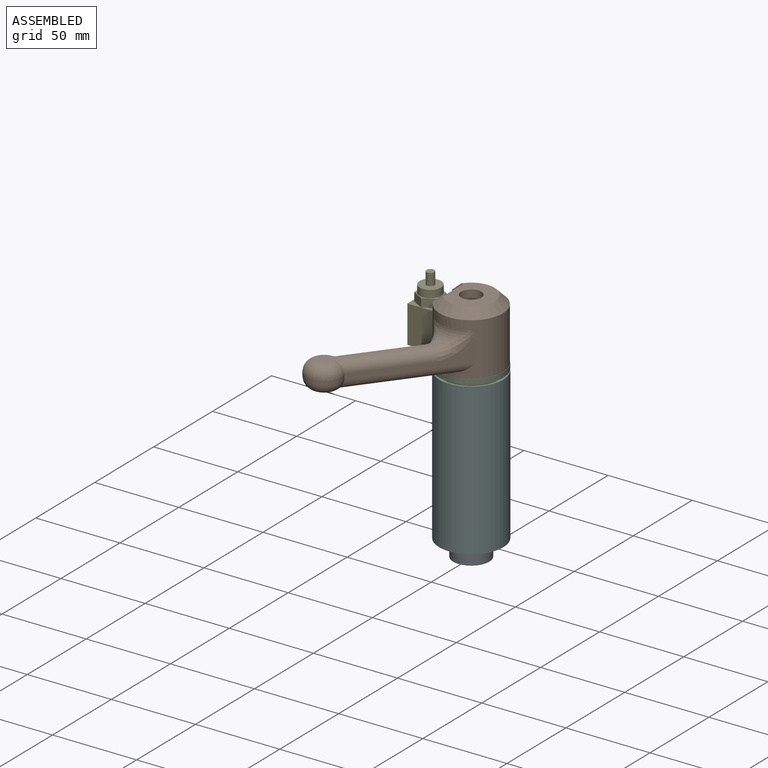
[diagram: assembled view]
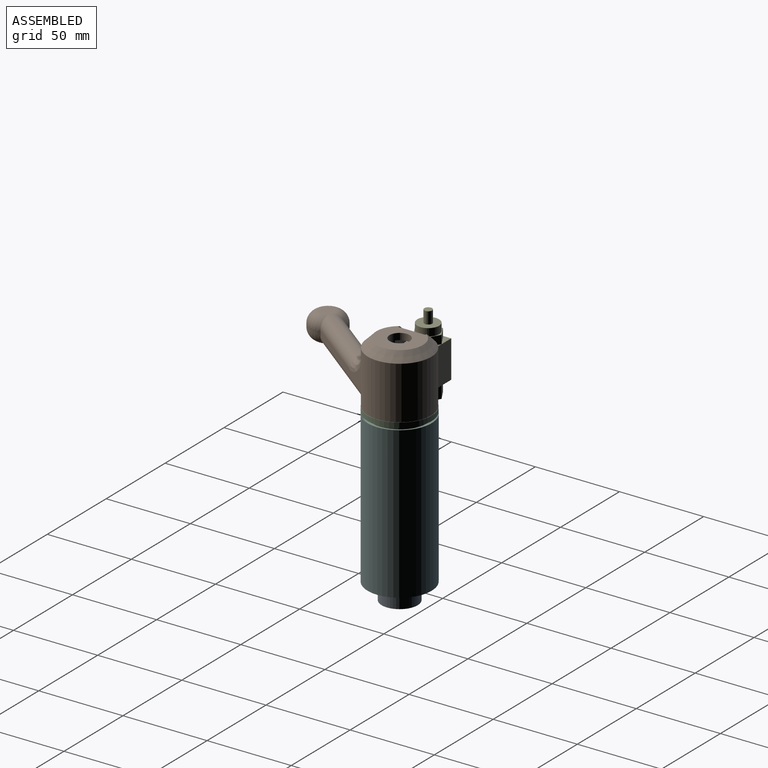
[diagram: assembled view, second angle]
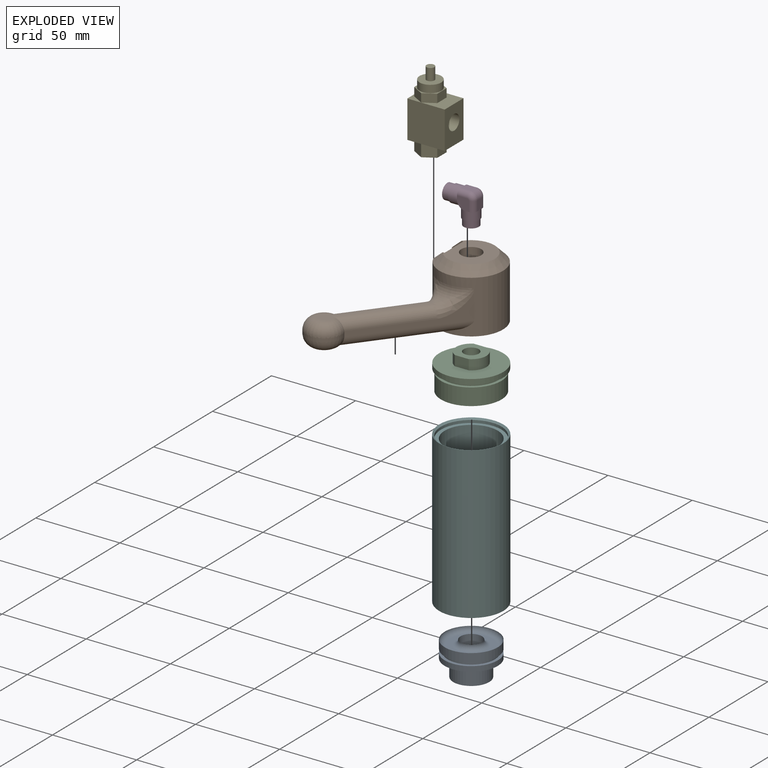
[diagram: exploded view]
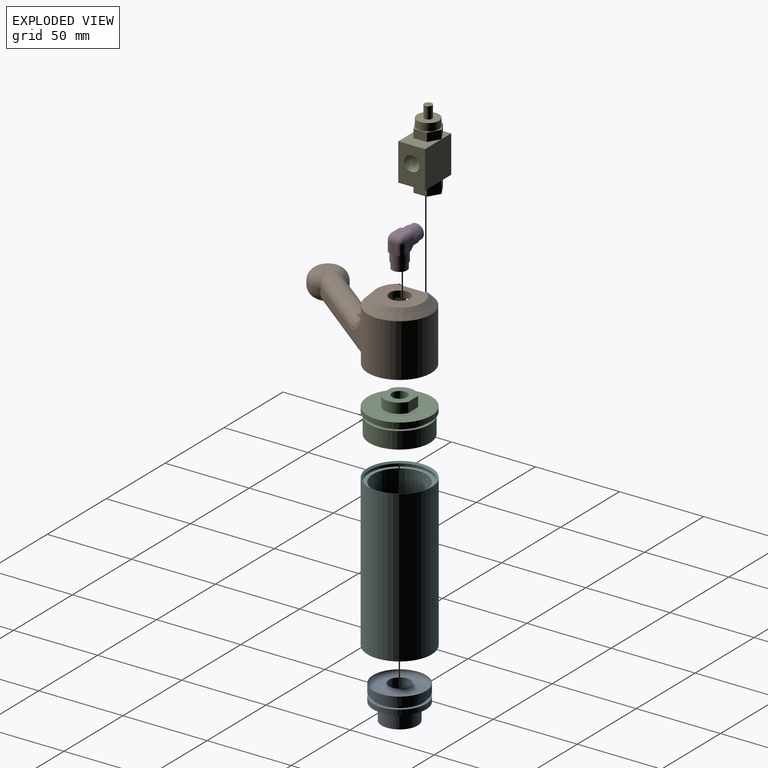
[diagram: exploded view, second angle]
ASSEMBLY  parts=6 mates=6
PART A: 16 faces, bbox 34.1x34.1x22.1 mm
  f0: torus R=12.75mm, axis (0,0,1), area 434.1mm2, adj f1,f15
  f1: plane 25.5x25.5mm, normal (0,0,1), area 233.1mm2, adj f0,f2
  f2: torus R=9.4mm, axis (0,0,1), area 221.8mm2, adj f1,f3
  f3: cylinder r=6.4mm len=12.8mm, axis (0,0,1), area 402.1mm2, adj f2,f4
  f4: plane 12.8x12.8mm, normal (0,0,1), area 50.1mm2, adj f3,f5
  f5: cylinder r=5mm len=10mm, axis (0,0,1), area 62.8mm2, adj f4,f6
  f6: plane 15.08x15.08mm, normal (0,0,-1), area 100.1mm2, adj f5,f7
  f7: cylinder r=7.54mm len=15.08mm, axis (0,0,1), area 379mm2, adj f6,f8
  f8: plane 21.4x21.4mm, normal (0,0,-1), area 181mm2, adj f7,f9
  f9: cylinder r=10.7mm len=21.4mm, axis (0,0,1), area 672.3mm2, adj f8,f10
  f10: plane 31.5x31.5mm, normal (0,0,-1), area 419.6mm2, adj f9,f11
  f11: cylinder r=15.75mm len=31.5mm, axis (0,0,1), area 296.9mm2, adj f10,f12
  f12: plane 31.5x31.5mm, normal (0,0,1), area 167.9mm2, adj f11,f13
  f13: cylinder r=13.95mm len=27.9mm, axis (0,0,1), area 175.3mm2, adj f12,f14
  f14: plane 31.5x31.5mm, normal (0,0,-1), area 167.9mm2, adj f13,f15
  f15: cylinder r=15.75mm len=31.5mm, axis (0,0,1), area 494.8mm2, adj f0,f14
PART B: 34 faces, bbox 99.5x70.7x37 mm
  f0: plane 32.6x7.01mm, normal (1,0,0), area 201.2mm2, adj f4,f9,f11,f12,f13,f15
  f1: plane 32.6x7.01mm, normal (-1,0,0), area 201.2mm2, adj f6,f9,f11,f12,f13,f15
  f2: plane 8.32x6.2mm, normal (1,0,0), area 51.6mm2, adj f4,f5,f11,f13
  f3: plane 8.32x6.2mm, normal (-1,0,0), area 51.6mm2, adj f5,f6,f11,f13
  f4: cylinder r=9.15mm len=6.2mm, axis (0,0,-1), area 29.1mm2, adj f0,f2,f11,f13
  f5: cylinder r=9.15mm len=16.3mm, axis (0,0,-1), area 124.7mm2, adj f2,f3,f11,f13
  f6: cylinder r=9.15mm len=6.2mm, axis (0,0,-1), area 29.1mm2, adj f1,f3,f11,f13
  f7: cylinder r=18.85mm len=37.7mm, axis (0,0,-1), area 2621mm2, adj f8,f10,f11,f16,f17,f21,f22,f23
  f8: plane 36.98x7.33mm, normal (1,0,0), area 235.7mm2, adj f7,f9,f11,f14,f16
  f9: plane 36.5x15.97mm, normal (0,-1,0), area 253mm2, adj f0,f1,f8,f10,f11,f14,f15
  f10: plane 36.98x7.33mm, normal (-1,0,0), area 235.7mm2, adj f7,f9,f11,f14,f16
  f11: plane 37.7x35.92mm, normal (0,0,-1), area 720.2mm2, adj f0,f1,f2,f3,f4,f5,f6,f7
  f12: cylinder r=6mm len=30.3mm, axis (0,0,-1), area 824.2mm2, adj f0,f1,f13,f14,f15
  f13: plane 16.77x16.3mm, normal (0,0,-1), area 103.5mm2, adj f0,f1,f2,f3,f4,f5,f6,f12
  f14: plane 27.7x25.17mm, normal (0,0,1), area 444.7mm2, adj f8,f9,f10,f12,f16
  f15: plane 10.12x7.01mm, normal (0,0,-1), area 51.1mm2, adj f0,f1,f9,f12
  f16: cone r=13.85mm half-angle=45deg, axis (0,0,-1), area 605.8mm2, adj f7,f8,f10,f14
  f17: plane 52.43x40.51mm, normal (0.61,0.79,0), area 295.3mm2, adj f7,f19,f27,f28,f31,f32,f33
  f18: plane 34.61x26.74mm, normal (-0.61,-0.79,0), area 148.5mm2, adj f19,f23,f24,f29,f32,f33
  f19: cylinder r=10.54mm len=21.08mm, axis (0,0,-1), area 98.7mm2, adj f17,f18,f32,f33
  f20: plane 47.25x37.68mm, normal (0,0,1), area 84.6mm2, adj f22,f24,f25,f27,f33
  f21: plane 55.1x43.56mm, normal (0,0,-1), area 107.1mm2, adj f7,f29,f30,f31,f32
  f22: torus R=26.85mm, axis (0,0,1), area 138mm2, adj f7,f20,f26,f28
  f23: cylinder r=8mm len=17.4mm, axis (0,0,-1), area 87.9mm2, adj f7,f18,f25,f26,f30
  f24: cylinder r=6mm len=41.88mm, axis (-0.79,0.61,0), area 433.5mm2, adj f18,f20,f25,f33
  f25: torus R=14mm, axis (0,0,1), area 16.7mm2, adj f20,f23,f24,f26
  f26: bspline ~14x12.99mm, area 89.8mm2, adj f22,f23,f25
  f27: cylinder r=6mm len=44.18mm, axis (0.79,-0.61,0), area 461mm2, adj f17,f20,f28,f33
  f28: bspline ~18.17x17.57mm, area 130.7mm2, adj f7,f17,f22,f27
  f29: cylinder r=6mm len=41.88mm, axis (0.79,-0.61,0), area 433.5mm2, adj f18,f21,f30,f32
  f30: torus R=14mm, axis (0,0,1), area 95.5mm2, adj f7,f21,f23,f29
  f31: cylinder r=6mm len=59.69mm, axis (-0.79,0.61,0), area 598.6mm2, adj f7,f17,f21,f32
  f32: torus R=3.78mm, axis (0,0,1), area 441.2mm2, adj f17,f18,f19,f21,f29,f31
  f33: torus R=3.78mm, axis (0,0,1), area 441.2mm2, adj f17,f18,f19,f20,f24,f27
PART C: 16 faces, bbox 38x38x21 mm
  f0: plane 36x36mm, normal (0,0,1), area 507.2mm2, adj f1,f2
  f1: cylinder r=18mm len=36mm, axis (0,0,-1), area 1131mm2, adj f0,f14
  f2: cylinder r=12.75mm len=25.5mm, axis (0,0,-1), area 640.9mm2, adj f0,f4
  f3: plane 23.5x23.5mm, normal (0,0,1), area 370.1mm2, adj f4,f5
  f4: torus R=11.75mm, axis (0,0,1), area 122.3mm2, adj f2,f3
  f5: cylinder r=4.5mm len=12mm, axis (0,0,-1), area 339.3mm2, adj f3,f6
  f6: plane 18x16mm, normal (0,0,-1), area 179.7mm2, adj f5,f7,f8,f9,f10
  f7: cylinder r=9mm len=16mm, axis (0,0,1), area 118.3mm2, adj f6,f8,f10,f11
  f8: plane 8.25x6mm, normal (0,1,0), area 49.5mm2, adj f6,f7,f9,f11
  f9: cylinder r=9mm len=16mm, axis (0,0,1), area 118.3mm2, adj f6,f8,f10,f11
  f10: plane 8.25x6mm, normal (0,-1,0), area 49.5mm2, adj f6,f7,f9,f11
  f11: plane 38x38mm, normal (0,0,-1), area 890.8mm2, adj f7,f8,f9,f10,f13
  f12: plane 38x38mm, normal (0,0,1), area 309.6mm2, adj f13,f15
  f13: cylinder r=19mm len=38mm, axis (0,0,1), area 358.1mm2, adj f11,f12
  f14: plane 36x36mm, normal (0,0,-1), area 193.4mm2, adj f1,f15
  f15: cylinder r=16.2mm len=32.4mm, axis (0,0,-1), area 203.6mm2, adj f12,f14
PART D: 25 faces, bbox 19.2x19.2x10 mm
  f0: plane 7x7mm, normal (0,0,1), area 43.4mm2, adj f8,f9,f13,f14,f15,f19
  f1: plane 7x7mm, normal (0,0,-1), area 43.4mm2, adj f7,f11,f16,f17,f18,f20
  f2: plane 6x4mm, normal (1,0,0), area 24mm2, adj f9,f11,f12,f13,f16
  f3: plane 6x4mm, normal (0,1,0), area 24mm2, adj f7,f8,f12,f15,f18
  f4: plane 10x10mm, normal (0,-1,0), area 14.9mm2, adj f10,f21
  f5: plane 10x10mm, normal (-1,0,0), area 14.9mm2, adj f6,f23
  f6: cylinder r=5mm len=10mm, axis (-1,0,0), area 171.2mm2, adj f5,f7,f8,f10,f19,f20
  f7: plane 5x5mm, normal (-1,0,0), area 3.4mm2, adj f1,f3,f6,f18
  f8: plane 5x5mm, normal (-1,0,0), area 3.4mm2, adj f0,f3,f6,f15
  f9: plane 5x5mm, normal (0,-1,0), area 3.4mm2, adj f0,f2,f10,f13
  f10: cylinder r=5mm len=10mm, axis (0,-1,0), area 171.2mm2, adj f4,f6,f9,f11,f19,f20
  f11: plane 5x5mm, normal (0,-1,0), area 3.4mm2, adj f1,f2,f10,f16
  f12: cylinder r=4mm len=4mm, axis (0,0,-1), area 25.1mm2, adj f2,f3,f14,f17
  f13: cylinder r=3mm len=6mm, axis (0,-1,0), area 28.3mm2, adj f0,f2,f9,f14
  f14: torus R=1mm, axis (0,0,1), area 21.5mm2, adj f0,f12,f13,f15
  f15: cylinder r=3mm len=6mm, axis (1,0,0), area 28.3mm2, adj f0,f3,f8,f14
  f16: cylinder r=3mm len=6mm, axis (0,1,0), area 28.3mm2, adj f1,f2,f11,f17
  f17: torus R=1mm, axis (0,0,1), area 21.5mm2, adj f1,f12,f16,f18
  f18: cylinder r=3mm len=6mm, axis (-1,0,0), area 28.3mm2, adj f1,f3,f7,f17
  f19: cylinder r=5mm len=5mm, axis (0,0,-1), area 3.9mm2, adj f0,f6,f10
  f20: cylinder r=5mm len=5mm, axis (0,0,-1), area 3.9mm2, adj f1,f6,f10
  f21: cylinder r=4.5mm len=9mm, axis (0,1,0), area 113.1mm2, adj f4,f22
  f22: plane 9x9mm, normal (0,-1,0), area 63.6mm2, adj f21
  f23: cylinder r=4.5mm len=9mm, axis (1,0,0), area 113.1mm2, adj f5,f24
  f24: plane 9x9mm, normal (-1,0,0), area 63.6mm2, adj f23
PART E: 27 faces, bbox 15.9x22.2x46 mm
  f0: plane 22.22x15.9mm, normal (0,0,-1), area 191.2mm2, adj f1,f2,f3,f4,f13,f14,f15,f16
  f1: plane 22.22x15.9mm, normal (0,-1,0), area 289.7mm2, adj f0,f2,f4,f5,f24
  f2: plane 22.22x22.22mm, normal (1,0,0), area 493.7mm2, adj f0,f1,f3,f5
  f3: plane 22.22x15.9mm, normal (0,1,0), area 353.3mm2, adj f0,f2,f4,f5
  f4: plane 22.22x22.22mm, normal (-1,0,0), area 493.7mm2, adj f0,f1,f3,f5
  f5: plane 22.22x15.9mm, normal (0,0,1), area 191.2mm2, adj f1,f2,f3,f4,f6,f7,f8,f9
  f6: plane 7.18x6.84mm, normal (0.87,-0.5,0), area 56.7mm2, adj f5,f7,f11,f12
  f7: plane 7.18x6.84mm, normal (0.87,0.5,0), area 56.7mm2, adj f5,f6,f8,f12
  f8: plane 7.9x7.18mm, normal (0,1,0), area 56.7mm2, adj f5,f7,f9,f12
  f9: plane 7.18x6.84mm, normal (-0.87,0.5,0), area 56.7mm2, adj f5,f8,f10,f12
  f10: plane 7.18x6.84mm, normal (-0.87,-0.5,0), area 56.7mm2, adj f5,f9,f11,f12
  f11: plane 7.9x7.18mm, normal (0,-1,0), area 56.7mm2, adj f5,f6,f10,f12
  f12: plane 15.8x13.68mm, normal (0,0,1), area 98.5mm2, adj f6,f7,f8,f9,f10,f11,f25
  f13: plane 6.84x5mm, normal (0.87,-0.5,0), area 39.5mm2, adj f0,f14,f18,f19
  f14: plane 6.84x5mm, normal (0.87,0.5,0), area 39.5mm2, adj f0,f13,f15,f19
  f15: plane 7.9x5mm, normal (0,1,0), area 39.5mm2, adj f0,f14,f16,f19
  f16: plane 6.84x5mm, normal (-0.87,0.5,0), area 39.5mm2, adj f0,f15,f17,f19
  f17: plane 6.84x5mm, normal (-0.87,-0.5,0), area 39.5mm2, adj f0,f16,f18,f19
  f18: plane 7.9x5mm, normal (0,-1,0), area 39.5mm2, adj f0,f13,f17,f19
  f19: plane 15.8x13.68mm, normal (0,0,-1), area 29.4mm2, adj f13,f14,f15,f16,f17,f18,f20
  f20: cylinder r=6.5mm len=13mm, axis (0,0,1), area 183.8mm2, adj f19,f21
  f21: plane 13x13mm, normal (0,0,-1), area 115.4mm2, adj f20,f23
  f22: plane 4.7x4.7mm, normal (0,0,-1), area 17.3mm2, adj f23
  f23: cylinder r=2.35mm len=7.1mm, axis (0,0,1), area 104.8mm2, adj f21,f22
  f24: cylinder r=4.5mm len=14mm, axis (0,-1,0), area 316.6mm2, adj f1,f25
  f25: cylinder r=4.5mm len=25mm, axis (0,0,1), area 625.9mm2, adj f12,f24,f26
  f26: plane 9x9mm, normal (0,0,1), area 63.6mm2, adj f25
PART F: 7 faces, bbox 38.1x38.1x90 mm
  f0: cylinder r=15.8mm len=87.5mm, axis (0,0,-1), area 8686.5mm2, adj f2,f5
  f1: plane 38.1x38.1mm, normal (0,0,1), area 17.9mm2, adj f3,f6
  f2: plane 38.1x38.1mm, normal (0,0,-1), area 355.8mm2, adj f0,f3
  f3: cylinder r=19.05mm len=90mm, axis (0,0,-1), area 10772.5mm2, adj f1,f2
  f4: cylinder r=18mm len=36mm, axis (0,0,1), area 181mm2, adj f5,f6
  f5: plane 36x36mm, normal (0,0,1), area 233.6mm2, adj f0,f4
  f6: cone r=18mm half-angle=45deg, axis (0,0,1), area 147.5mm2, adj f1,f4
PLACE A t=(-18,16.84,40.31)mm
PLACE B rot(axis=(0,0,-1),90deg) t=(-18,16.84,124.41)mm
PLACE C rot(axis=(1,0,0),180deg) t=(-18,16.84,121.41)mm
PLACE D rot(axis=(1,0,0),90deg) t=(57.66,21.84,213.78)mm
PLACE E rot(axis=(0.71,-0.71,0),180deg) t=(-17.12,-123.7,150.51)mm
PLACE F t=(-18,16.84,30.31)mm
MATE fastened E.f24 <-> D.f6  axis (1,0,0) through (-28.2,16.84,140.61)mm
MATE fastened F.f0 <-> C.f1  axis (0,0,1) through (-18,16.84,119.41)mm
MATE fastened B.f5 <-> C.f1  axis (0,0,-1) through (-18,16.84,124.41)mm
MATE fastened D.f10 <-> C.f1  axis (0,0,-1) through (-18,16.84,130.41)mm
MATE fastened A.f0 <-> F.f0  axis (0,0,-1) through (-18,16.84,30.31)mm
MATE slider C.f1 <-> F.f0  axis (0,0,-1) through (-18,16.84,109.41)mm
